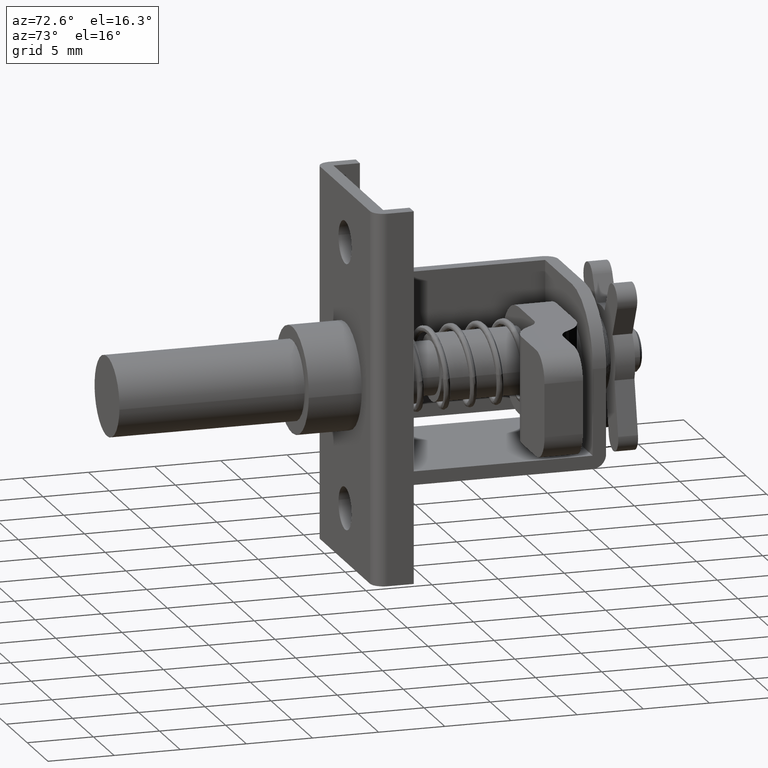
[diagram: clean part render]
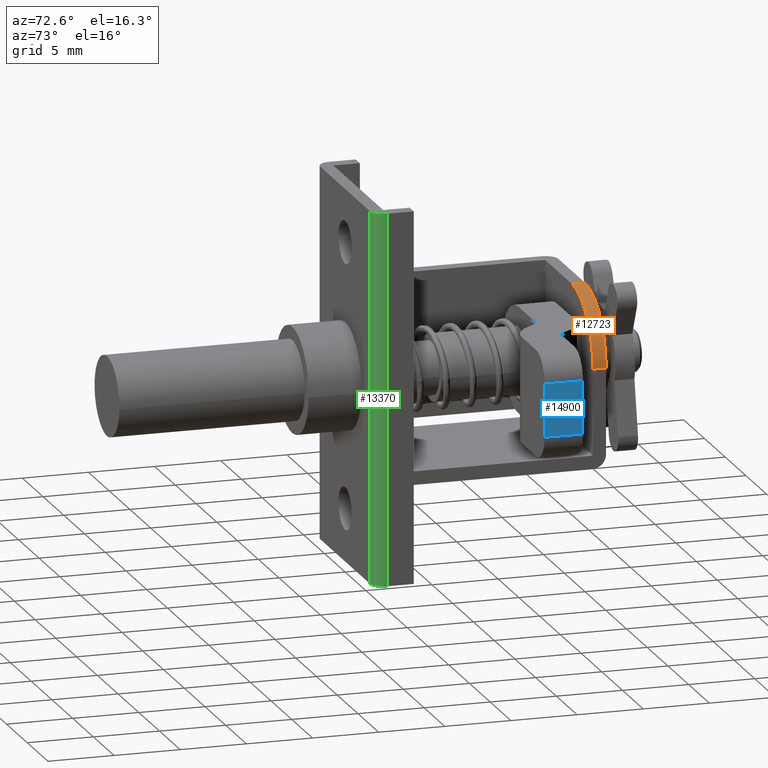
[diagram: same view with three faces highlighted in distinct colors, each labeled with its STEP entity id]
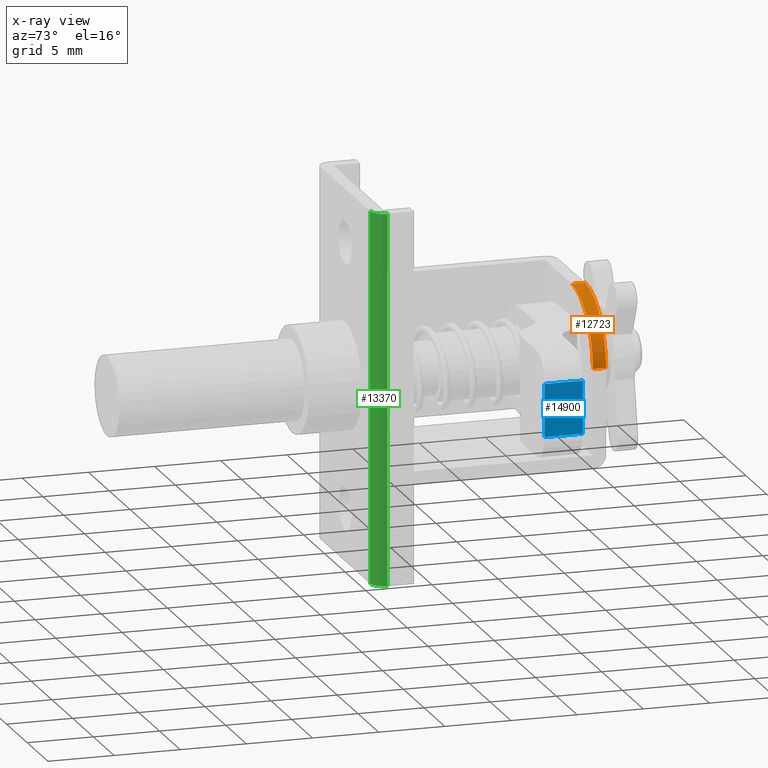
[diagram: x-ray of the same camera — body ghosted, the three highlighted faces saturated]
A machine part, auxiliary view with three faces highlighted in distinct colors.
The next image is the same camera in x-ray (body ghosted, the three faces saturated) — at least one of them is partly hidden behind the body in this view.
Their STEP definitions:

[orange] entity #12723 — the highlighted face is a freeform B-spline surface patch.
#12663=CARTESIAN_POINT('',(16.975000000000001,-5.498286624877784,0.369115258460633));
#12664=CARTESIAN_POINT('',(18.025625000000009,-5.498286624877784,0.369115258460633));
#12665=CARTESIAN_POINT('',(16.974999999999998,-5.642461300831309,5.874924002773597));
#12666=CARTESIAN_POINT('',(18.025624999999998,-5.642461300831309,5.874924002773597));
#12667=CARTESIAN_POINT('',(16.974999999999998,-0.148399621870079,5.487622396904047));
#12668=CARTESIAN_POINT('',(18.025625000000005,-0.148399621870079,5.487622396904047));
#12676=(BOUNDED_SURFACE()B_SPLINE_SURFACE(1,2,((#12663,#12665,#12667),(#12664,#12666,#12668)),.UNSPECIFIED.,.F.,.F.,.U.)B_SPLINE_SURFACE_WITH_KNOTS((2,2),(3,3),(0.0,1.0),(0.0,8.855711720441818),.UNSPECIFIED.)GEOMETRIC_REPRESENTATION_ITEM()RATIONAL_B_SPLINE_SURFACE(((1.0,0.670944223154768,0.996392648609106),(1.0,0.670944223154768,0.996392648609106)))REPRESENTATION_ITEM('')SURFACE());
#12677=CARTESIAN_POINT('',(18.0,-0.500000000000000,5.500000000000000));
#12678=VERTEX_POINT('',#12677);
#12679=CARTESIAN_POINT('',(18.0,-5.500000000000000,0.500000000000000));
#12680=VERTEX_POINT('',#12679);
#12681=CARTESIAN_POINT('',(18.0,-0.500000000000000,5.500000000000000));
#12682=CARTESIAN_POINT('',(18.000000000000007,-5.500000000000001,5.500000000000001));
#12683=CARTESIAN_POINT('',(18.0,-5.500000000000000,0.500000000000000));
#12691=(BOUNDED_CURVE()B_SPLINE_CURVE(2,(#12681,#12682,#12683),.UNSPECIFIED.,.F.,.U.)CURVE()GEOMETRIC_REPRESENTATION_ITEM()QUASI_UNIFORM_CURVE()RATIONAL_B_SPLINE_CURVE((1.0,0.707106781186548,1.0))REPRESENTATION_ITEM(''));
#12692=EDGE_CURVE('',#12678,#12680,#12691,.T.);
#12693=ORIENTED_EDGE('',*,*,#12692,.F.);
#12694=CARTESIAN_POINT('',(17.0,-0.500000000000000,5.500000000000000));
#12695=VERTEX_POINT('',#12694);
#12696=CARTESIAN_POINT('',(17.0,-0.500000000000000,5.500000000000000));
#12697=CARTESIAN_POINT('',(18.0,-0.500000000000000,5.500000000000000));
#12698=QUASI_UNIFORM_CURVE('',1,(#12696,#12697),.UNSPECIFIED.,.F.,.U.);
#12699=EDGE_CURVE('',#12695,#12678,#12698,.T.);
#12700=ORIENTED_EDGE('',*,*,#12699,.F.);
#12701=CARTESIAN_POINT('',(17.0,-5.500000000000000,0.500000000000000));
#12702=VERTEX_POINT('',#12701);
#12703=CARTESIAN_POINT('',(17.0,-0.500000000000000,5.500000000000000));
#12704=CARTESIAN_POINT('',(17.000000000000004,-5.500000000000001,5.500000000000001));
#12705=CARTESIAN_POINT('',(17.0,-5.500000000000000,0.500000000000000));
#12713=(BOUNDED_CURVE()B_SPLINE_CURVE(2,(#12703,#12704,#12705),.UNSPECIFIED.,.F.,.U.)CURVE()GEOMETRIC_REPRESENTATION_ITEM()QUASI_UNIFORM_CURVE()RATIONAL_B_SPLINE_CURVE((1.0,0.707106781186548,1.0))REPRESENTATION_ITEM(''));
#12714=EDGE_CURVE('',#12695,#12702,#12713,.T.);
#12715=ORIENTED_EDGE('',*,*,#12714,.T.);
#12716=CARTESIAN_POINT('',(17.0,-5.500000000000000,0.500000000000000));
#12717=CARTESIAN_POINT('',(18.0,-5.500000000000000,0.500000000000000));
#12718=QUASI_UNIFORM_CURVE('',1,(#12716,#12717),.UNSPECIFIED.,.F.,.U.);
#12719=EDGE_CURVE('',#12702,#12680,#12718,.T.);
#12720=ORIENTED_EDGE('',*,*,#12719,.T.);
#12721=EDGE_LOOP('',(#12693,#12700,#12715,#12720));
#12722=FACE_OUTER_BOUND('',#12721,.T.);
#12723=ADVANCED_FACE('',(#12722),#12676,.T.);

[blue] entity #14900 — the highlighted face is a freeform B-spline surface patch.
#14404=CARTESIAN_POINT('',(13.900000000000000,-13.0,-2.0));
#14405=VERTEX_POINT('',#14404);
#14421=CARTESIAN_POINT('',(11.0,-13.0,-2.0));
#14422=VERTEX_POINT('',#14421);
#14423=CARTESIAN_POINT('',(11.0,-13.0,-2.0));
#14424=CARTESIAN_POINT('',(13.900000000000000,-13.0,-2.0));
#14425=QUASI_UNIFORM_CURVE('',1,(#14423,#14424),.UNSPECIFIED.,.F.,.U.);
#14426=EDGE_CURVE('',#14422,#14405,#14425,.T.);
#14467=CARTESIAN_POINT('',(13.900000000000000,-13.0,2.000000000000115));
#14468=VERTEX_POINT('',#14467);
#14489=CARTESIAN_POINT('',(11.0,-13.0,2.000000000000115));
#14490=VERTEX_POINT('',#14489);
#14504=CARTESIAN_POINT('',(13.900000000000000,-13.0,2.000000000000115));
#14505=CARTESIAN_POINT('',(11.0,-13.0,2.000000000000115));
#14506=QUASI_UNIFORM_CURVE('',1,(#14504,#14505),.UNSPECIFIED.,.F.,.U.);
#14507=EDGE_CURVE('',#14468,#14490,#14506,.T.);
#14872=CARTESIAN_POINT('',(11.0,-13.0,-2.0));
#14873=CARTESIAN_POINT('',(11.0,-13.0,2.000000000000115));
#14874=QUASI_UNIFORM_CURVE('',1,(#14872,#14873),.UNSPECIFIED.,.F.,.U.);
#14875=EDGE_CURVE('',#14422,#14490,#14874,.T.);
#14885=CARTESIAN_POINT('',(10.855145026342431,-13.0,-2.199799992247230));
#14886=CARTESIAN_POINT('',(10.855145026342431,-13.0,2.199800099535705));
#14887=CARTESIAN_POINT('',(14.044854636593300,-13.0,-2.199799992247230));
#14888=CARTESIAN_POINT('',(14.044854636593300,-13.0,2.199800099535705));
#14889=B_SPLINE_SURFACE_WITH_KNOTS('',1,1,((#14885,#14887),(#14886,#14888)),.UNSPECIFIED.,.F.,.F.,.U.,(2,2),(2,2),(0.0,4.399600091782935),(0.0,3.189709610250864),.UNSPECIFIED.);
#14890=CARTESIAN_POINT('',(13.900000000000000,-13.0,-2.0));
#14891=CARTESIAN_POINT('',(13.900000000000000,-13.0,2.000000000000115));
#14892=QUASI_UNIFORM_CURVE('',1,(#14890,#14891),.UNSPECIFIED.,.F.,.U.);
#14893=EDGE_CURVE('',#14405,#14468,#14892,.T.);
#14894=ORIENTED_EDGE('',*,*,#14893,.T.);
#14895=ORIENTED_EDGE('',*,*,#14507,.T.);
#14896=ORIENTED_EDGE('',*,*,#14875,.F.);
#14897=ORIENTED_EDGE('',*,*,#14426,.T.);
#14898=EDGE_LOOP('',(#14894,#14895,#14896,#14897));
#14899=FACE_OUTER_BOUND('',#14898,.T.);
#14900=ADVANCED_FACE('',(#14899),#14889,.F.);

[green] entity #13370 — the highlighted face is a freeform B-spline surface patch.
#12962=CARTESIAN_POINT('',(7.347638E-016,-6.0,14.000000277756600));
#12963=VERTEX_POINT('',#12962);
#12964=CARTESIAN_POINT('',(1.0,-7.0,14.000000277756600));
#12965=VERTEX_POINT('',#12964);
#12966=CARTESIAN_POINT('',(0.0,-6.0,14.000000277756600));
#12967=CARTESIAN_POINT('',(0.0,-6.999999999999999,14.000000277756600));
#12968=CARTESIAN_POINT('',(1.0,-7.0,14.000000277756600));
#12976=(BOUNDED_CURVE()B_SPLINE_CURVE(2,(#12966,#12967,#12968),.UNSPECIFIED.,.F.,.U.)CURVE()GEOMETRIC_REPRESENTATION_ITEM()QUASI_UNIFORM_CURVE()RATIONAL_B_SPLINE_CURVE((1.0,0.707106781186548,1.0))REPRESENTATION_ITEM(''));
#12977=EDGE_CURVE('',#12963,#12965,#12976,.T.);
#13080=CARTESIAN_POINT('',(7.347638E-016,-6.0,-13.999999722243301));
#13081=VERTEX_POINT('',#13080);
#13087=CARTESIAN_POINT('',(7.347638E-016,-6.0,-13.999999722243301));
#13088=CARTESIAN_POINT('',(7.347638E-016,-6.0,14.000000277756600));
#13089=QUASI_UNIFORM_CURVE('',1,(#13087,#13088),.UNSPECIFIED.,.F.,.U.);
#13090=EDGE_CURVE('',#13081,#12963,#13089,.T.);
#13322=CARTESIAN_POINT('',(1.0,-7.0,-13.999999722243301));
#13323=VERTEX_POINT('',#13322);
#13324=CARTESIAN_POINT('',(1.0,-7.0,-13.999999722243301));
#13325=CARTESIAN_POINT('',(1.0,-7.0,14.000000277756600));
#13326=QUASI_UNIFORM_CURVE('',1,(#13324,#13325),.UNSPECIFIED.,.F.,.U.);
#13327=EDGE_CURVE('',#13323,#12965,#13326,.T.);
#13338=CARTESIAN_POINT('',(1.026176948307874,-6.999657324975557,-14.699999722243300));
#13339=CARTESIAN_POINT('',(1.026176948307874,-6.999657324975557,14.717500277756599));
#13340=CARTESIAN_POINT('',(-0.074984800554721,-7.028492260166264,-14.699999722243300));
#13341=CARTESIAN_POINT('',(-0.074984800554721,-7.028492260166264,14.717500277756598));
#13342=CARTESIAN_POINT('',(0.002475520619189,-5.929679924374018,-14.699999722243298));
#13343=CARTESIAN_POINT('',(0.002475520619189,-5.929679924374018,14.717500277756599));
#13351=(BOUNDED_SURFACE()B_SPLINE_SURFACE(1,2,((#13338,#13340,#13342),(#13339,#13341,#13343)),.UNSPECIFIED.,.F.,.F.,.U.)B_SPLINE_SURFACE_WITH_KNOTS((2,2),(3,3),(0.0,29.417499999999901),(0.0,0.994518632334191),.UNSPECIFIED.)GEOMETRIC_REPRESENTATION_ITEM()RATIONAL_B_SPLINE_SURFACE(((1.0,0.670944223154768,0.996392648609106),(1.0,0.670944223154768,0.996392648609106)))REPRESENTATION_ITEM('')SURFACE());
#13352=ORIENTED_EDGE('',*,*,#12977,.F.);
#13353=ORIENTED_EDGE('',*,*,#13090,.F.);
#13354=CARTESIAN_POINT('',(0.0,-6.0,-13.999999722243301));
#13355=CARTESIAN_POINT('',(0.0,-6.999999999999999,-13.999999722243301));
#13356=CARTESIAN_POINT('',(1.0,-7.0,-13.999999722243301));
#13364=(BOUNDED_CURVE()B_SPLINE_CURVE(2,(#13354,#13355,#13356),.UNSPECIFIED.,.F.,.U.)CURVE()GEOMETRIC_REPRESENTATION_ITEM()QUASI_UNIFORM_CURVE()RATIONAL_B_SPLINE_CURVE((1.0,0.707106781186548,1.0))REPRESENTATION_ITEM(''));
#13365=EDGE_CURVE('',#13081,#13323,#13364,.T.);
#13366=ORIENTED_EDGE('',*,*,#13365,.T.);
#13367=ORIENTED_EDGE('',*,*,#13327,.T.);
#13368=EDGE_LOOP('',(#13352,#13353,#13366,#13367));
#13369=FACE_OUTER_BOUND('',#13368,.T.);
#13370=ADVANCED_FACE('',(#13369),#13351,.T.);